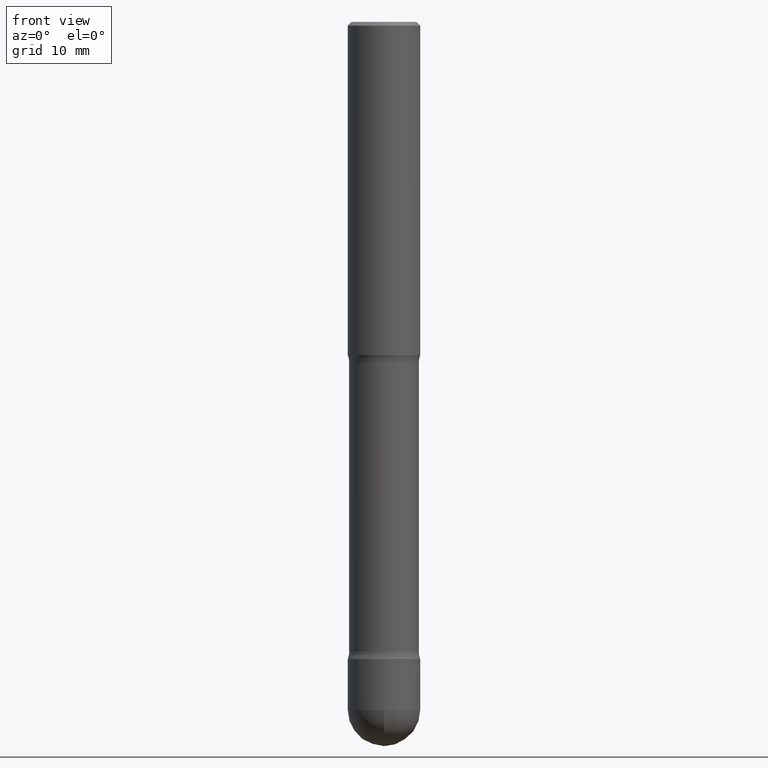
[diagram: clean part render]
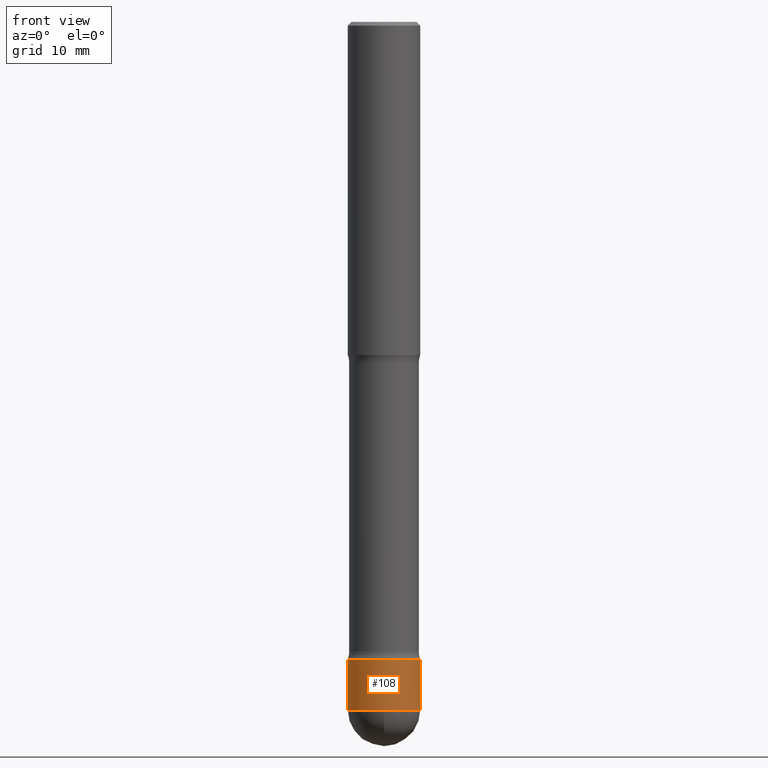
[diagram: same view with one face highlighted and labeled with its STEP entity id]
A machine part, front view. The second image highlights one B-rep face of the part: STEP entity #108.
In plain terms, the highlighted cylindrical surface (edge-blend (fillet) strip) has radius 5 mm, axis along (-0, 0, 1).
Its self-contained STEP definition (entity closure, byte-faithful):
#14 = CIRCLE ( 'NONE', #284, 0.1968499999999993588 ) ;
#20 = EDGE_LOOP ( 'NONE', ( #62, #359, #282, #273, #309 ) ) ;
#22 = VECTOR ( 'NONE', #442, 39.37007874015748143 ) ;
#27 = CARTESIAN_POINT ( 'NONE',  ( -1.374596203102447142E-15, -0.1968500000000126260, -3.740149999999999864 ) ) ;
#32 = CYLINDRICAL_SURFACE ( 'NONE', #303, 0.1968499999999993311 ) ;
#40 = DIRECTION ( 'NONE',  ( 1.000000000000000000, -6.982962677686266711E-15, 4.876176775795935793E-29 ) ) ;
#44 = AXIS2_PLACEMENT_3D ( 'NONE', #271, #121, #209 ) ;
#51 = AXIS2_PLACEMENT_3D ( 'NONE', #435, #164, #561 ) ;
#62 = ORIENTED_EDGE ( 'NONE', *, *, #167, .F. ) ;
#76 = LINE ( 'NONE', #168, #22 ) ;
#81 = FACE_OUTER_BOUND ( 'NONE', #20, .T. ) ;
#83 = VERTEX_POINT ( 'NONE', #27 ) ;
#108 = ADVANCED_FACE ( 'NONE', ( #81 ), #32, .T. ) ;
#114 = EDGE_CURVE ( 'NONE', #326, #83, #410, .T. ) ;
#116 = DIRECTION ( 'NONE',  ( -2.445468806185136877E-29, 3.491481338843145188E-15, 1.000000000000000000 ) ) ;
#121 = DIRECTION ( 'NONE',  ( -2.445468806185136597E-29, 3.491481338843145583E-15, 1.000000000000000000 ) ) ;
#133 = EDGE_CURVE ( 'NONE', #83, #513, #552, .T. ) ;
#142 = EDGE_CURVE ( 'NONE', #539, #497, #14, .T. ) ;
#146 = CARTESIAN_POINT ( 'NONE',  ( -0.1968499999999993033, -1.117892171267132551E-14, -3.740150000000000308 ) ) ;
#164 = DIRECTION ( 'NONE',  ( -2.445468806185136597E-29, 3.491481338843145583E-15, 1.000000000000000000 ) ) ;
#167 = EDGE_CURVE ( 'NONE', #326, #539, #76, .T. ) ;
#168 = CARTESIAN_POINT ( 'NONE',  ( -0.1968499999999993311, 1.398703375343752463E-15, -9.682923725166748645E-30 ) ) ;
#192 = LINE ( 'NONE', #329, #458 ) ;
#207 = CARTESIAN_POINT ( 'NONE',  ( 0.000000000000000000, 0.000000000000000000, 0.000000000000000000 ) ) ;
#209 = DIRECTION ( 'NONE',  ( 1.000000000000000000, -6.982962677686263555E-15, 0.000000000000000000 ) ) ;
#251 = CARTESIAN_POINT ( 'NONE',  ( 0.1968499999999993588, -1.347118244965850061E-14, -3.464599999999999902 ) ) ;
#271 = CARTESIAN_POINT ( 'NONE',  ( 9.146420155453339430E-29, -1.305866392947419182E-14, -3.740150000000000308 ) ) ;
#273 = ORIENTED_EDGE ( 'NONE', *, *, #542, .T. ) ;
#282 = ORIENTED_EDGE ( 'NONE', *, *, #133, .T. ) ;
#284 = AXIS2_PLACEMENT_3D ( 'NONE', #300, #557, #345 ) ;
#296 = CARTESIAN_POINT ( 'NONE',  ( -0.1968499999999993588, -1.117892171267132393E-14, -3.464599999999999902 ) ) ;
#300 = CARTESIAN_POINT ( 'NONE',  ( 8.472571225909024784E-29, -1.209658624655596216E-14, -3.464599999999999902 ) ) ;
#303 = AXIS2_PLACEMENT_3D ( 'NONE', #207, #511, #40 ) ;
#309 = ORIENTED_EDGE ( 'NONE', *, *, #142, .F. ) ;
#326 = VERTEX_POINT ( 'NONE', #146 ) ;
#329 = CARTESIAN_POINT ( 'NONE',  ( 0.1968499999999993311, -1.374596203102536875E-15, 9.598753983154267227E-30 ) ) ;
#345 = DIRECTION ( 'NONE',  ( 1.000000000000000000, -6.982962677686271444E-15, 0.000000000000000000 ) ) ;
#359 = ORIENTED_EDGE ( 'NONE', *, *, #114, .T. ) ;
#403 = CARTESIAN_POINT ( 'NONE',  ( 0.1968499999999993033, -1.395222129111761465E-14, -3.740150000000000308 ) ) ;
#410 = CIRCLE ( 'NONE', #51, 0.1968499999999993033 ) ;
#435 = CARTESIAN_POINT ( 'NONE',  ( 9.146420155453339430E-29, -1.305866392947419182E-14, -3.740150000000000308 ) ) ;
#442 = DIRECTION ( 'NONE',  ( -2.445468806185136877E-29, 3.491481338843145188E-15, 1.000000000000000000 ) ) ;
#458 = VECTOR ( 'NONE', #116, 39.37007874015748143 ) ;
#497 = VERTEX_POINT ( 'NONE', #251 ) ;
#511 = DIRECTION ( 'NONE',  ( -2.445468806185136597E-29, 3.491481338843145583E-15, 1.000000000000000000 ) ) ;
#513 = VERTEX_POINT ( 'NONE', #403 ) ;
#539 = VERTEX_POINT ( 'NONE', #296 ) ;
#542 = EDGE_CURVE ( 'NONE', #513, #497, #192, .T. ) ;
#552 = CIRCLE ( 'NONE', #44, 0.1968499999999993033 ) ;
#557 = DIRECTION ( 'NONE',  ( -2.445468806185136597E-29, 3.491481338843145583E-15, 1.000000000000000000 ) ) ;
#561 = DIRECTION ( 'NONE',  ( 1.000000000000000000, -6.982962677686263555E-15, 0.000000000000000000 ) ) ;